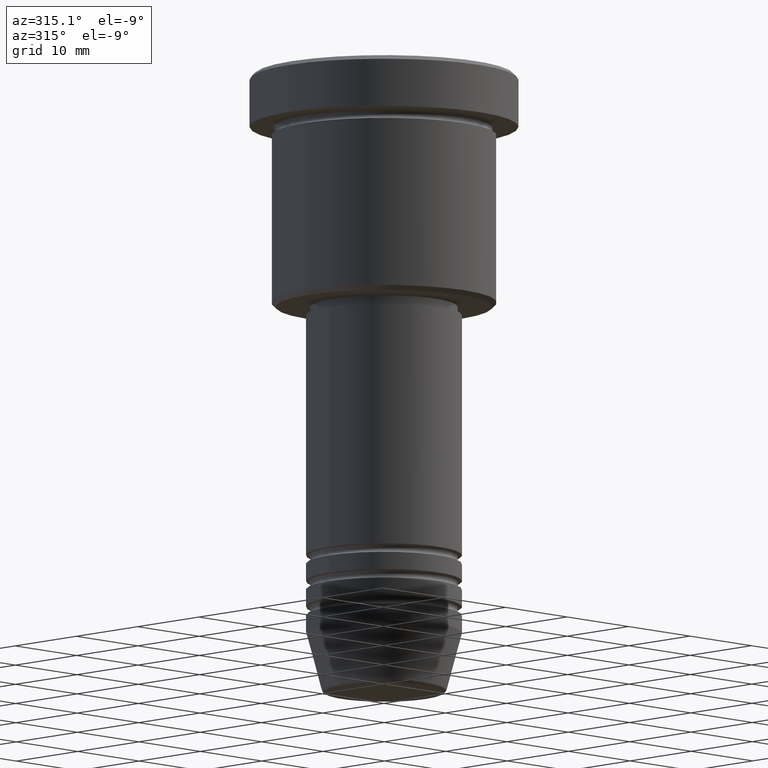
[diagram: clean part render]
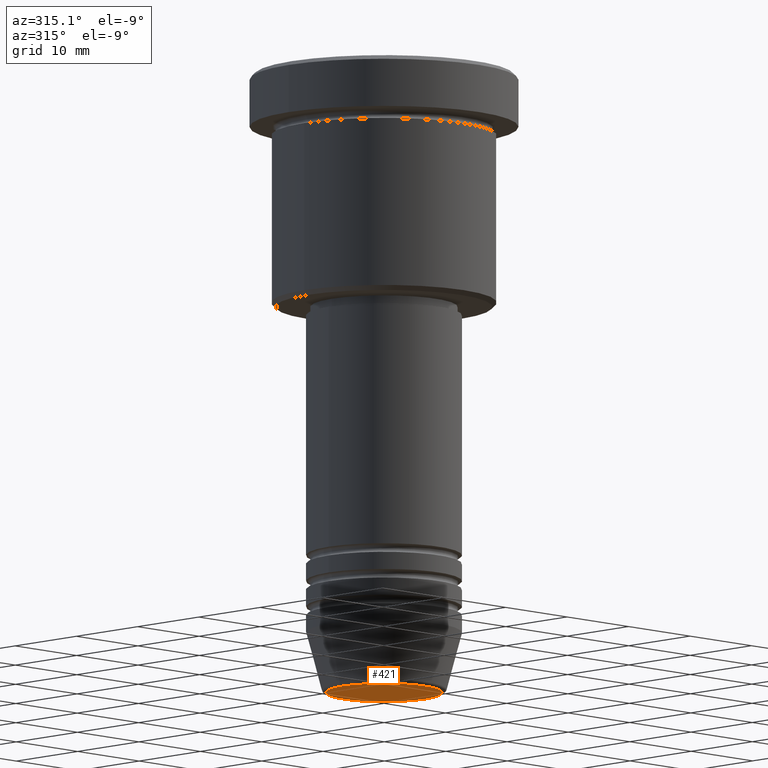
[diagram: same view with one face highlighted and labeled with its STEP entity id]
A machine part, auxiliary view. The second image highlights one B-rep face of the part: STEP entity #421.
In plain terms, the highlighted planar face has unit normal (0, -0, 1).
Its self-contained STEP definition (entity closure, byte-faithful):
#40 = DIRECTION ( 'NONE',  ( 1.000000000000000000, 0.000000000000000000, 0.000000000000000000 ) ) ;
#109 = VERTEX_POINT ( 'NONE', #879 ) ;
#116 = CARTESIAN_POINT ( 'NONE',  ( -6.740692158992653837, 8.550696569392682723E-16, -72.00000000000001421 ) ) ;
#129 = DIRECTION ( 'NONE',  ( 1.000000000000000000, 0.000000000000000000, 0.000000000000000000 ) ) ;
#140 = DIRECTION ( 'NONE',  ( 0.000000000000000000, 0.000000000000000000, -1.000000000000000000 ) ) ;
#215 = DIRECTION ( 'NONE',  ( 0.000000000000000000, 0.000000000000000000, -1.000000000000000000 ) ) ;
#245 = ORIENTED_EDGE ( 'NONE', *, *, #514, .T. ) ;
#416 = ORIENTED_EDGE ( 'NONE', *, *, #477, .T. ) ;
#421 = ADVANCED_FACE ( 'NONE', ( #1023 ), #757, .F. ) ;
#424 = CIRCLE ( 'NONE', #1083, 6.740692158992653837 ) ;
#477 = EDGE_CURVE ( 'NONE', #836, #109, #665, .T. ) ;
#514 = EDGE_CURVE ( 'NONE', #109, #836, #424, .T. ) ;
#521 = CARTESIAN_POINT ( 'NONE',  ( 0.000000000000000000, 0.000000000000000000, -72.00000000000001421 ) ) ;
#586 = DIRECTION ( 'NONE',  ( 0.000000000000000000, -0.000000000000000000, 1.000000000000000000 ) ) ;
#665 = CIRCLE ( 'NONE', #828, 6.740692158992653837 ) ;
#757 = PLANE ( 'NONE',  #849 ) ;
#828 = AXIS2_PLACEMENT_3D ( 'NONE', #855, #215, #40 ) ;
#836 = VERTEX_POINT ( 'NONE', #116 ) ;
#842 = EDGE_LOOP ( 'NONE', ( #245, #416 ) ) ;
#849 = AXIS2_PLACEMENT_3D ( 'NONE', #1126, #586, #129 ) ;
#855 = CARTESIAN_POINT ( 'NONE',  ( 0.000000000000000000, 0.000000000000000000, -72.00000000000001421 ) ) ;
#873 = DIRECTION ( 'NONE',  ( 1.000000000000000000, 0.000000000000000000, 0.000000000000000000 ) ) ;
#879 = CARTESIAN_POINT ( 'NONE',  ( 6.740692158992653837, 0.000000000000000000, -72.00000000000001421 ) ) ;
#1023 = FACE_OUTER_BOUND ( 'NONE', #842, .T. ) ;
#1083 = AXIS2_PLACEMENT_3D ( 'NONE', #521, #140, #873 ) ;
#1126 = CARTESIAN_POINT ( 'NONE',  ( 0.000000000000000000, 0.000000000000000000, -72.00000000000001421 ) ) ;